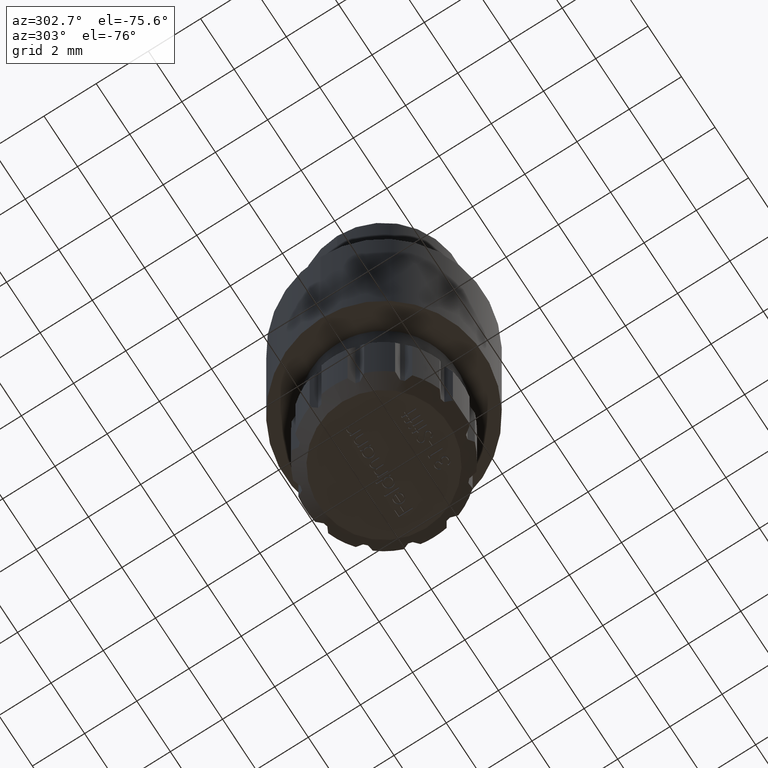
[diagram: clean part render]
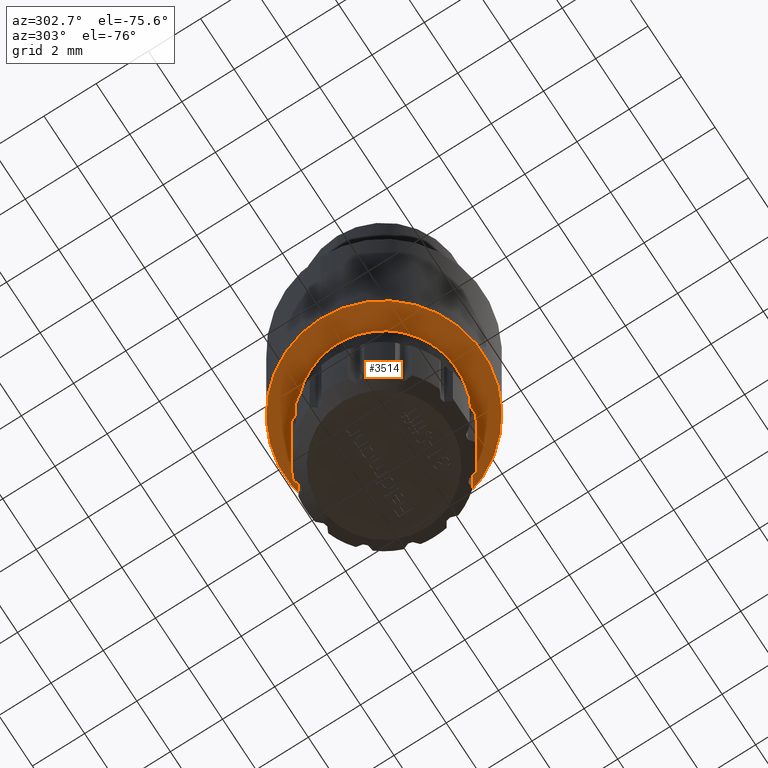
[diagram: same view with one face highlighted and labeled with its STEP entity id]
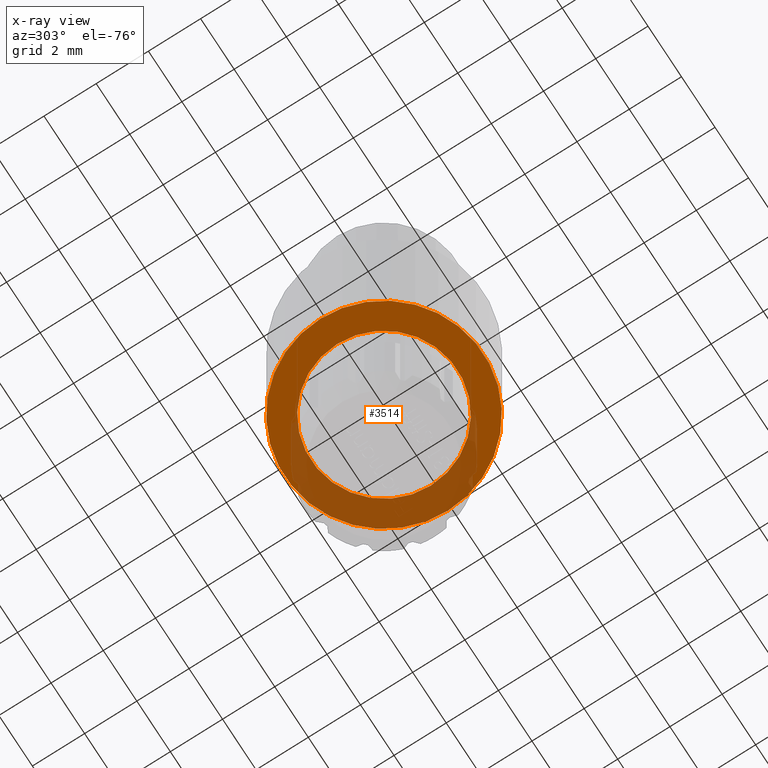
[diagram: x-ray of the same camera — body ghosted, the highlighted face saturated]
A machine part, auxiliary view. The second image highlights one B-rep face of the part: STEP entity #3514.
The next image is the same camera in x-ray: the body ghosted, the highlighted face saturated — about 37% of this face is hidden behind the body in this view.
In plain terms, the highlighted planar face has unit normal (0, 0, 1).
Its self-contained STEP definition (entity closure, byte-faithful):
#222 = DIRECTION ( 'NONE',  ( 0.0000000000000000000, 0.0000000000000000000, 1.000000000000000000 ) ) ;
#281 = CARTESIAN_POINT ( 'NONE',  ( 0.0000000000000000000, 0.0000000000000000000, 0.0000000000000000000 ) ) ;
#1279 = CARTESIAN_POINT ( 'NONE',  ( -2.799999999999999800, 0.0000000000000000000, 0.0000000000000000000 ) ) ;
#1289 = DIRECTION ( 'NONE',  ( 1.000000000000000000, 0.0000000000000000000, 0.0000000000000000000 ) ) ;
#2192 = AXIS2_PLACEMENT_3D ( 'NONE', #2944, #9913, #3957 ) ;
#2277 = CIRCLE ( 'NONE', #8136, 2.799999999999999800 ) ;
#2819 = ORIENTED_EDGE ( 'NONE', *, *, #6691, .F. ) ;
#2944 = CARTESIAN_POINT ( 'NONE',  ( 0.0000000000000000000, 0.0000000000000000000, 0.0000000000000000000 ) ) ;
#3048 = VERTEX_POINT ( 'NONE', #1279 ) ;
#3514 = ADVANCED_FACE ( 'NONE', ( #10173, #7217 ), #4108, .F. ) ;
#3779 = DIRECTION ( 'NONE',  ( 0.0000000000000000000, 0.0000000000000000000, 1.000000000000000000 ) ) ;
#3957 = DIRECTION ( 'NONE',  ( 1.000000000000000000, 0.0000000000000000000, 0.0000000000000000000 ) ) ;
#4076 = EDGE_LOOP ( 'NONE', ( #12130, #6919 ) ) ;
#4108 = PLANE ( 'NONE',  #11129 ) ;
#4165 = DIRECTION ( 'NONE',  ( 0.0000000000000000000, 0.0000000000000000000, 1.000000000000000000 ) ) ;
#4172 = VERTEX_POINT ( 'NONE', #4919 ) ;
#4463 = AXIS2_PLACEMENT_3D ( 'NONE', #281, #7269, #1289 ) ;
#4919 = CARTESIAN_POINT ( 'NONE',  ( 2.799999999999999800, 3.429011037612588800E-016, 0.0000000000000000000 ) ) ;
#5593 = EDGE_CURVE ( 'NONE', #3048, #4172, #6095, .T. ) ;
#5662 = CIRCLE ( 'NONE', #2192, 3.799999999999999800 ) ;
#6095 = CIRCLE ( 'NONE', #4463, 2.799999999999999800 ) ;
#6691 = EDGE_CURVE ( 'NONE', #12347, #10522, #12268, .T. ) ;
#6919 = ORIENTED_EDGE ( 'NONE', *, *, #7531, .T. ) ;
#7205 = DIRECTION ( 'NONE',  ( 1.000000000000000000, 0.0000000000000000000, -0.0000000000000000000 ) ) ;
#7217 = FACE_BOUND ( 'NONE', #4076, .T. ) ;
#7269 = DIRECTION ( 'NONE',  ( 0.0000000000000000000, 0.0000000000000000000, 1.000000000000000000 ) ) ;
#7531 = EDGE_CURVE ( 'NONE', #4172, #3048, #2277, .T. ) ;
#8108 = CARTESIAN_POINT ( 'NONE',  ( -3.799999999999999800, 0.0000000000000000000, 0.0000000000000000000 ) ) ;
#8136 = AXIS2_PLACEMENT_3D ( 'NONE', #9737, #3779, #10753 ) ;
#9256 = EDGE_CURVE ( 'NONE', #10522, #12347, #5662, .T. ) ;
#9458 = EDGE_LOOP ( 'NONE', ( #2819, #10407 ) ) ;
#9737 = CARTESIAN_POINT ( 'NONE',  ( 0.0000000000000000000, 0.0000000000000000000, 0.0000000000000000000 ) ) ;
#9913 = DIRECTION ( 'NONE',  ( 0.0000000000000000000, 0.0000000000000000000, 1.000000000000000000 ) ) ;
#10143 = CARTESIAN_POINT ( 'NONE',  ( 0.0000000000000000000, 0.0000000000000000000, 0.0000000000000000000 ) ) ;
#10163 = CARTESIAN_POINT ( 'NONE',  ( 3.799999999999999800, 4.653657836759942700E-016, 0.0000000000000000000 ) ) ;
#10173 = FACE_OUTER_BOUND ( 'NONE', #9458, .T. ) ;
#10407 = ORIENTED_EDGE ( 'NONE', *, *, #9256, .F. ) ;
#10522 = VERTEX_POINT ( 'NONE', #10163 ) ;
#10666 = AXIS2_PLACEMENT_3D ( 'NONE', #10143, #4165, #11148 ) ;
#10753 = DIRECTION ( 'NONE',  ( 1.000000000000000000, 0.0000000000000000000, 0.0000000000000000000 ) ) ;
#11129 = AXIS2_PLACEMENT_3D ( 'NONE', #12165, #222, #7205 ) ;
#11148 = DIRECTION ( 'NONE',  ( 1.000000000000000000, 0.0000000000000000000, 0.0000000000000000000 ) ) ;
#12130 = ORIENTED_EDGE ( 'NONE', *, *, #5593, .T. ) ;
#12165 = CARTESIAN_POINT ( 'NONE',  ( 0.0000000000000000000, 0.0000000000000000000, 0.0000000000000000000 ) ) ;
#12268 = CIRCLE ( 'NONE', #10666, 3.799999999999999800 ) ;
#12347 = VERTEX_POINT ( 'NONE', #8108 ) ;